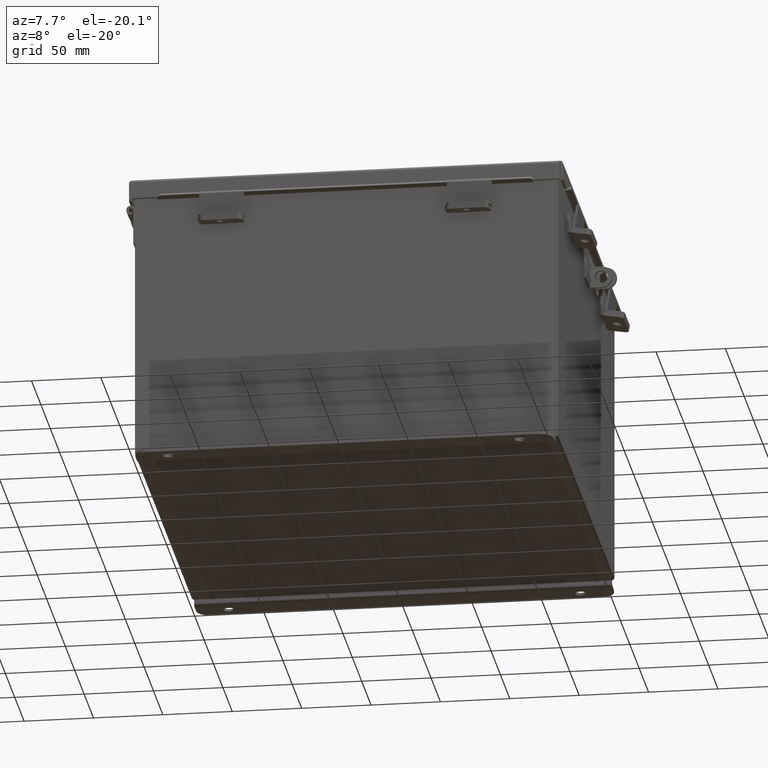
[diagram: clean part render]
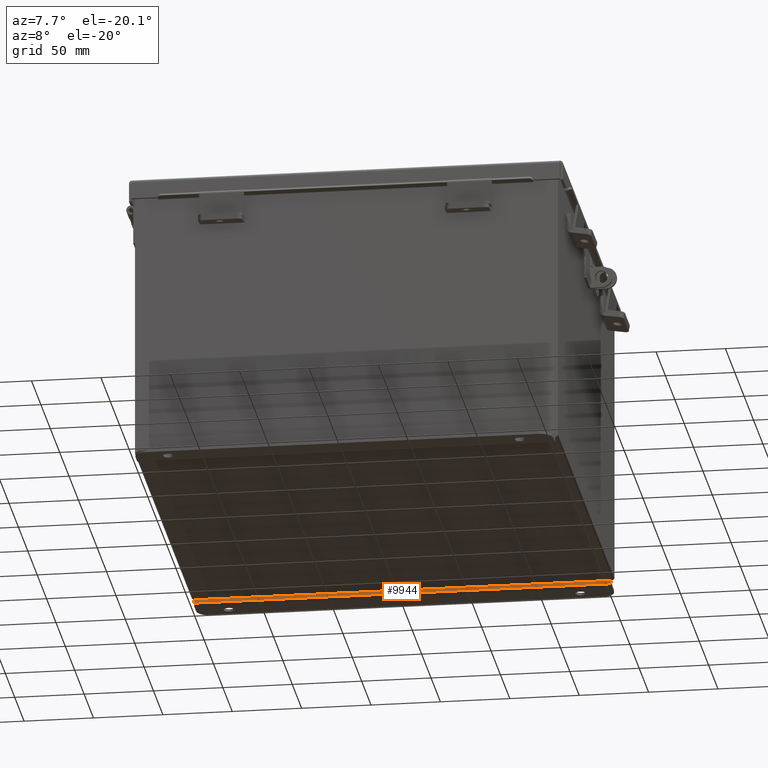
[diagram: same view with one face highlighted and labeled with its STEP entity id]
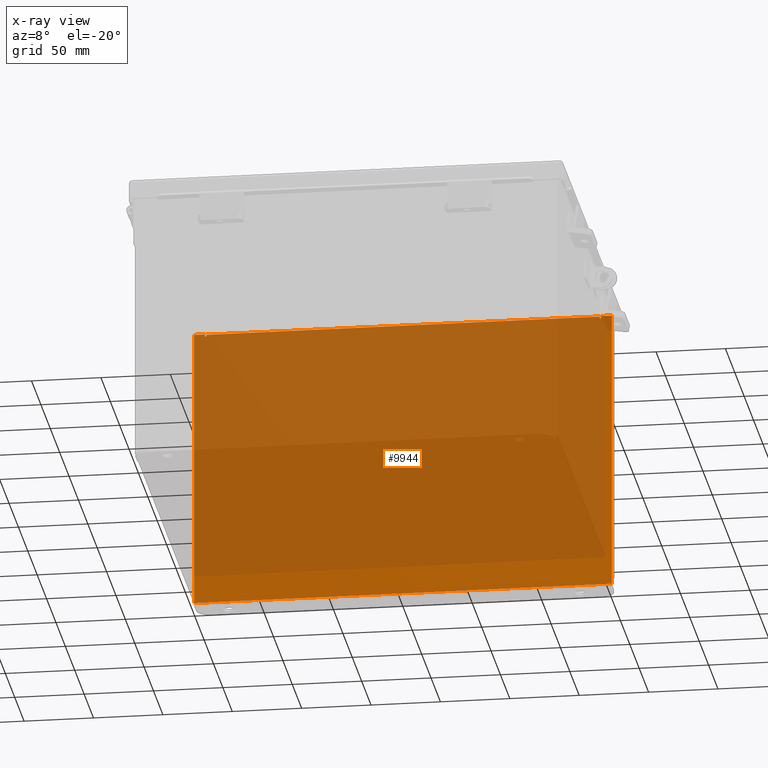
[diagram: x-ray of the same camera — body ghosted, the highlighted face saturated]
A machine part, auxiliary view. The second image highlights one B-rep face of the part: STEP entity #9944.
The next image is the same camera in x-ray: the body ghosted, the highlighted face saturated — about 89% of this face is hidden behind the body in this view.
In plain terms, the highlighted planar face has unit normal (0, -1, 0).
Its self-contained STEP definition (entity closure, byte-faithful):
#17 = EDGE_CURVE ( 'NONE', #3599, #7202, #8585, .T. ) ;
#348 = CIRCLE ( 'NONE', #10184, 0.01867500000000003900 ) ;
#657 = VERTEX_POINT ( 'NONE', #11300 ) ;
#1211 = CARTESIAN_POINT ( 'NONE',  ( 5.619649999999999100, -0.07470000000000000300, 3.874949999999998300 ) ) ;
#1547 = ORIENTED_EDGE ( 'NONE', *, *, #9707, .F. ) ;
#1844 = LINE ( 'NONE', #15813, #5452 ) ;
#1932 = VERTEX_POINT ( 'NONE', #1211 ) ;
#2350 = DIRECTION ( 'NONE',  ( 1.000000000000000000, 0.0000000000000000000, 4.610480471308225700E-017 ) ) ;
#2354 = VERTEX_POINT ( 'NONE', #10258 ) ;
#2368 = ORIENTED_EDGE ( 'NONE', *, *, #17119, .F. ) ;
#2567 = VECTOR ( 'NONE', #15216, 39.37007874015748100 ) ;
#2741 = DIRECTION ( 'NONE',  ( 0.0000000000000000000, -1.000000000000000000, 0.0000000000000000000 ) ) ;
#2869 = VECTOR ( 'NONE', #8882, 39.37007874015748100 ) ;
#2911 = CARTESIAN_POINT ( 'NONE',  ( 5.925299999999999100, -0.07469999999999987800, -4.099300000000000400 ) ) ;
#2943 = CARTESIAN_POINT ( 'NONE',  ( -5.925300000000001800, -0.07470000000000000300, 3.925299999999999100 ) ) ;
#3076 = LINE ( 'NONE', #5159, #6268 ) ;
#3335 = LINE ( 'NONE', #5214, #13690 ) ;
#3599 = VERTEX_POINT ( 'NONE', #14829 ) ;
#3615 = EDGE_CURVE ( 'NONE', #8480, #13375, #348, .T. ) ;
#4380 = LINE ( 'NONE', #2943, #10732 ) ;
#4934 = ORIENTED_EDGE ( 'NONE', *, *, #9846, .F. ) ;
#5036 = VERTEX_POINT ( 'NONE', #10377 ) ;
#5131 = LINE ( 'NONE', #10834, #11905 ) ;
#5159 = CARTESIAN_POINT ( 'NONE',  ( -5.582300000000000900, -0.07469999999999769900, 3.912299999999998800 ) ) ;
#5214 = CARTESIAN_POINT ( 'NONE',  ( -5.582300000000000000, -0.07469999999999769900, 3.874949999999998300 ) ) ;
#5321 = VERTEX_POINT ( 'NONE', #2911 ) ;
#5452 = VECTOR ( 'NONE', #13143, 39.37007874015748100 ) ;
#5524 = EDGE_CURVE ( 'NONE', #2354, #1932, #14773, .T. ) ;
#5630 = DIRECTION ( 'NONE',  ( 1.000000000000000000, 0.0000000000000000000, 4.610480471308225700E-017 ) ) ;
#5689 = EDGE_CURVE ( 'NONE', #7613, #5321, #1844, .T. ) ;
#5787 = EDGE_CURVE ( 'NONE', #13375, #10695, #3335, .T. ) ;
#5978 = EDGE_CURVE ( 'NONE', #8351, #5036, #4380, .T. ) ;
#6268 = VECTOR ( 'NONE', #13516, 39.37007874015748100 ) ;
#6493 = LINE ( 'NONE', #14265, #2869 ) ;
#6571 = ORIENTED_EDGE ( 'NONE', *, *, #5787, .F. ) ;
#7136 = ORIENTED_EDGE ( 'NONE', *, *, #5524, .F. ) ;
#7170 = ORIENTED_EDGE ( 'NONE', *, *, #16868, .F. ) ;
#7202 = VERTEX_POINT ( 'NONE', #9023 ) ;
#7300 = CARTESIAN_POINT ( 'NONE',  ( -5.925300000000000000, -0.07470000000000084900, -4.099300000000000400 ) ) ;
#7416 = CARTESIAN_POINT ( 'NONE',  ( 5.600974999999998300, -0.07469999999999769900, 3.874949999999998300 ) ) ;
#7613 = VERTEX_POINT ( 'NONE', #7300 ) ;
#7875 = LINE ( 'NONE', #13843, #2567 ) ;
#7944 = ORIENTED_EDGE ( 'NONE', *, *, #3615, .F. ) ;
#7976 = ORIENTED_EDGE ( 'NONE', *, *, #5689, .T. ) ;
#8237 = ORIENTED_EDGE ( 'NONE', *, *, #16093, .F. ) ;
#8351 = VERTEX_POINT ( 'NONE', #10159 ) ;
#8480 = VERTEX_POINT ( 'NONE', #15892 ) ;
#8585 = LINE ( 'NONE', #10608, #11765 ) ;
#8649 = DIRECTION ( 'NONE',  ( 0.0000000000000000000, -0.0000000000000000000, -1.000000000000000000 ) ) ;
#8704 = DIRECTION ( 'NONE',  ( 0.0000000000000000000, 0.0000000000000000000, -1.000000000000000000 ) ) ;
#8780 = DIRECTION ( 'NONE',  ( 0.0000000000000000000, 0.0000000000000000000, -1.000000000000000000 ) ) ;
#8882 = DIRECTION ( 'NONE',  ( 2.170286390199955400E-014, -2.272018564740578300E-014, 1.000000000000000000 ) ) ;
#9023 = CARTESIAN_POINT ( 'NONE',  ( -5.619650000000000000, -0.07470000000000000300, 3.925299999999999100 ) ) ;
#9707 = EDGE_CURVE ( 'NONE', #5036, #5321, #5131, .T. ) ;
#9717 = VECTOR ( 'NONE', #8704, 39.37007874015748100 ) ;
#9846 = EDGE_CURVE ( 'NONE', #7202, #8480, #7875, .T. ) ;
#9944 = ADVANCED_FACE ( 'NONE', ( #12107 ), #14015, .T. ) ;
#10159 = CARTESIAN_POINT ( 'NONE',  ( 5.619650000000000000, -0.07470000000000000300, 3.925299999999999600 ) ) ;
#10184 = AXIS2_PLACEMENT_3D ( 'NONE', #10865, #2741, #12239 ) ;
#10258 = CARTESIAN_POINT ( 'NONE',  ( 5.582299999999999200, -0.07470000000000000300, 3.874949999999998300 ) ) ;
#10327 = VECTOR ( 'NONE', #16829, 39.37007874015748100 ) ;
#10377 = CARTESIAN_POINT ( 'NONE',  ( 5.925299999999999100, -0.07470000000000000300, 3.925299999999999600 ) ) ;
#10608 = CARTESIAN_POINT ( 'NONE',  ( -5.925300000000001800, -0.07470000000000000300, 3.925299999999999100 ) ) ;
#10695 = VERTEX_POINT ( 'NONE', #15545 ) ;
#10732 = VECTOR ( 'NONE', #5630, 39.37007874015748100 ) ;
#10834 = CARTESIAN_POINT ( 'NONE',  ( 5.925299999999999100, -0.07470000000000000300, 3.925299999999999600 ) ) ;
#10865 = CARTESIAN_POINT ( 'NONE',  ( -5.600975000000000000, -0.07469999999999769900, 3.874949999999998300 ) ) ;
#11300 = CARTESIAN_POINT ( 'NONE',  ( 5.582299999999999200, -0.07470000000000000300, 3.912299999999998800 ) ) ;
#11765 = VECTOR ( 'NONE', #2350, 39.37007874015748100 ) ;
#11783 = EDGE_CURVE ( 'NONE', #657, #2354, #13297, .T. ) ;
#11905 = VECTOR ( 'NONE', #12212, 39.37007874015748100 ) ;
#12107 = FACE_OUTER_BOUND ( 'NONE', #15342, .T. ) ;
#12212 = DIRECTION ( 'NONE',  ( 0.0000000000000000000, 0.0000000000000000000, -1.000000000000000000 ) ) ;
#12239 = DIRECTION ( 'NONE',  ( 0.0000000000000000000, 0.0000000000000000000, -1.000000000000000000 ) ) ;
#13143 = DIRECTION ( 'NONE',  ( 1.000000000000000000, 8.208677865577646300E-017, -0.0000000000000000000 ) ) ;
#13157 = ORIENTED_EDGE ( 'NONE', *, *, #17, .F. ) ;
#13179 = AXIS2_PLACEMENT_3D ( 'NONE', #15394, #16746, #8649 ) ;
#13297 = LINE ( 'NONE', #14091, #9717 ) ;
#13375 = VERTEX_POINT ( 'NONE', #16899 ) ;
#13516 = DIRECTION ( 'NONE',  ( 1.000000000000000000, 0.0000000000000000000, 0.0000000000000000000 ) ) ;
#13580 = AXIS2_PLACEMENT_3D ( 'NONE', #7416, #16891, #8780 ) ;
#13690 = VECTOR ( 'NONE', #14676, 39.37007874015748100 ) ;
#13843 = CARTESIAN_POINT ( 'NONE',  ( -5.619650000000000000, -0.07469999999999885100, 3.925299999999999100 ) ) ;
#13911 = LINE ( 'NONE', #16705, #10327 ) ;
#14015 = PLANE ( 'NONE',  #13179 ) ;
#14091 = CARTESIAN_POINT ( 'NONE',  ( 5.582299999999999200, -0.07469999999999769900, 3.912299999999998800 ) ) ;
#14265 = CARTESIAN_POINT ( 'NONE',  ( 5.619649999999999100, -0.07469999999999769900, 3.874949999999998300 ) ) ;
#14676 = DIRECTION ( 'NONE',  ( 0.0000000000000000000, 0.0000000000000000000, 1.000000000000000000 ) ) ;
#14773 = CIRCLE ( 'NONE', #13580, 0.01867500000000003900 ) ;
#14829 = CARTESIAN_POINT ( 'NONE',  ( -5.925300000000001800, -0.07470000000000000300, 3.925299999999999100 ) ) ;
#15216 = DIRECTION ( 'NONE',  ( 0.0000000000000000000, 2.272018564740602900E-014, -1.000000000000000000 ) ) ;
#15291 = ORIENTED_EDGE ( 'NONE', *, *, #5978, .F. ) ;
#15342 = EDGE_LOOP ( 'NONE', ( #7944, #4934, #13157, #8237, #7976, #1547, #15291, #7170, #7136, #16989, #2368, #6571 ) ) ;
#15394 = CARTESIAN_POINT ( 'NONE',  ( 0.0000000000000000000, -0.07470000000000000300, 0.0000000000000000000 ) ) ;
#15545 = CARTESIAN_POINT ( 'NONE',  ( -5.582300000000000000, -0.07470000000000000300, 3.912299999999998800 ) ) ;
#15813 = CARTESIAN_POINT ( 'NONE',  ( -5.925300000000001800, -0.07470000000000084900, -4.099300000000000400 ) ) ;
#15892 = CARTESIAN_POINT ( 'NONE',  ( -5.619650000000000000, -0.07470000000000000300, 3.874949999999998300 ) ) ;
#16093 = EDGE_CURVE ( 'NONE', #7613, #3599, #13911, .T. ) ;
#16705 = CARTESIAN_POINT ( 'NONE',  ( -5.925300000000001800, -0.07470000000000000300, 3.925299999999999100 ) ) ;
#16746 = DIRECTION ( 'NONE',  ( 0.0000000000000000000, -1.000000000000000000, 0.0000000000000000000 ) ) ;
#16829 = DIRECTION ( 'NONE',  ( -0.0000000000000000000, -0.0000000000000000000, 1.000000000000000000 ) ) ;
#16868 = EDGE_CURVE ( 'NONE', #1932, #8351, #6493, .T. ) ;
#16891 = DIRECTION ( 'NONE',  ( 0.0000000000000000000, -1.000000000000000000, 0.0000000000000000000 ) ) ;
#16899 = CARTESIAN_POINT ( 'NONE',  ( -5.582300000000000000, -0.07470000000000000300, 3.874949999999998300 ) ) ;
#16989 = ORIENTED_EDGE ( 'NONE', *, *, #11783, .F. ) ;
#17119 = EDGE_CURVE ( 'NONE', #10695, #657, #3076, .T. ) ;